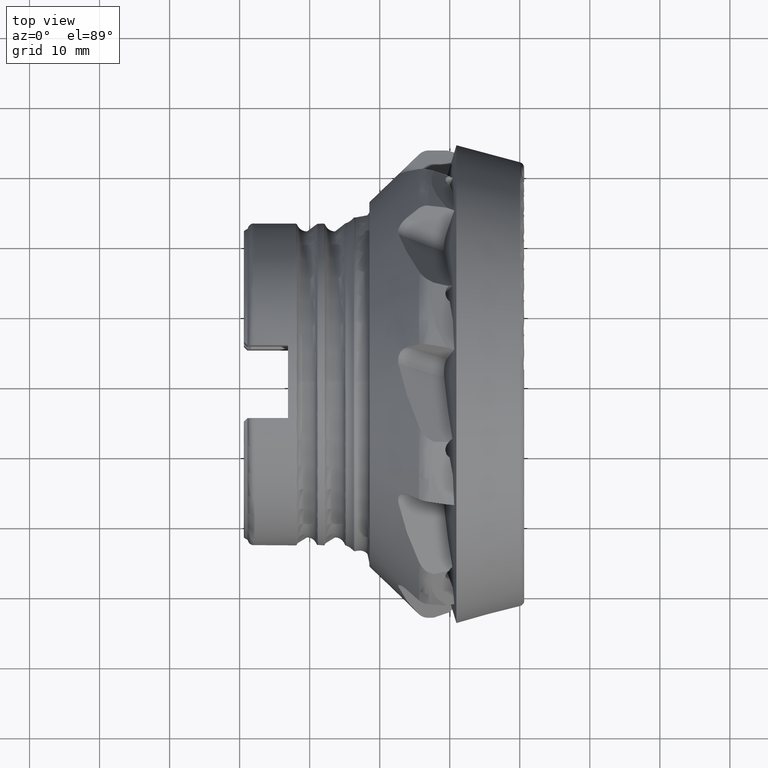
[diagram: clean part render]
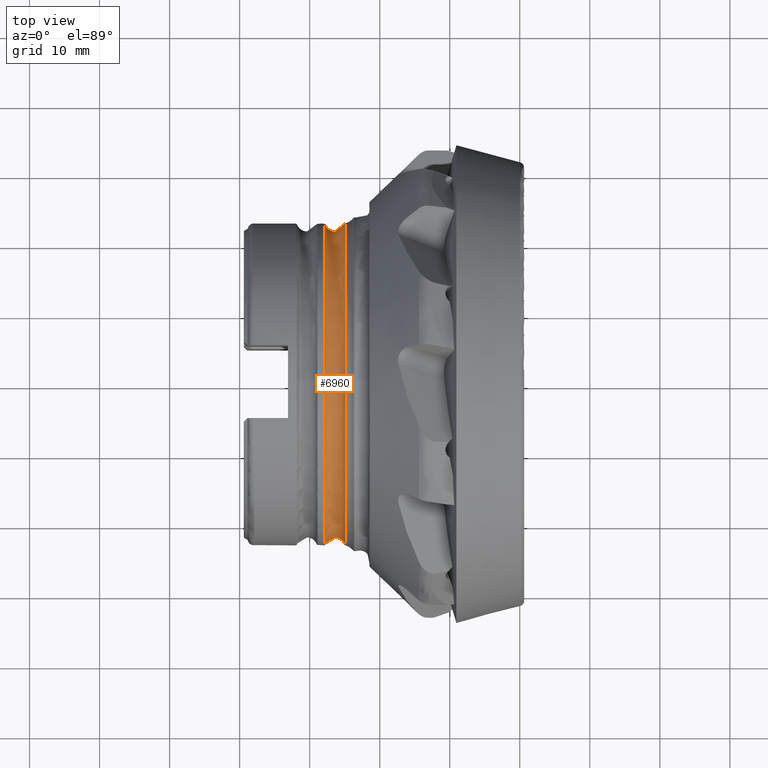
[diagram: same view with one face highlighted and labeled with its STEP entity id]
A machine part, top view. The second image highlights one B-rep face of the part: STEP entity #6960.
In plain terms, the highlighted toroidal blend (fillet) surface has major radius 23.4 mm and minor (blend) radius 1.5 mm.
Its self-contained STEP definition (entity closure, byte-faithful):
#209 = ORIENTED_EDGE ( 'NONE', *, *, #4932, .T. ) ;
#270 = CARTESIAN_POINT ( 'NONE',  ( -24.96919220290268300, 0.0000000000000000000, 22.94967895034341500 ) ) ;
#1195 = FACE_OUTER_BOUND ( 'NONE', #5828, .T. ) ;
#1976 = CARTESIAN_POINT ( 'NONE',  ( -27.80346826946406900, 0.0000000000000000000, 0.0000000000000000000 ) ) ;
#2027 = VERTEX_POINT ( 'NONE', #5624 ) ;
#2421 = EDGE_LOOP ( 'NONE', ( #3235 ) ) ;
#2504 = DIRECTION ( 'NONE',  ( -1.000000000000000000, -0.0000000000000000000, -0.0000000000000000000 ) ) ;
#2516 = DIRECTION ( 'NONE',  ( 0.0000000000000000000, 0.0000000000000000000, -1.000000000000000000 ) ) ;
#2864 = CARTESIAN_POINT ( 'NONE',  ( -26.39999999999999500, 0.0000000000000000000, 0.0000000000000000000 ) ) ;
#3235 = ORIENTED_EDGE ( 'NONE', *, *, #6214, .T. ) ;
#3717 = FACE_OUTER_BOUND ( 'NONE', #2421, .T. ) ;
#3855 = AXIS2_PLACEMENT_3D ( 'NONE', #2864, #4474, #6617 ) ;
#3975 = CIRCLE ( 'NONE', #3996, 22.94967895034341500 ) ;
#3996 = AXIS2_PLACEMENT_3D ( 'NONE', #5707, #2504, #6254 ) ;
#4474 = DIRECTION ( 'NONE',  ( -1.000000000000000000, -0.0000000000000000000, -0.0000000000000000000 ) ) ;
#4932 = EDGE_CURVE ( 'NONE', #5046, #5046, #3975, .T. ) ;
#5046 = VERTEX_POINT ( 'NONE', #270 ) ;
#5133 = TOROIDAL_SURFACE ( 'NONE', #3855, 23.39999999999999500, 1.500000000000000900 ) ;
#5624 = CARTESIAN_POINT ( 'NONE',  ( -27.80346826946406900, 0.0000000000000000000, -22.87058823529391200 ) ) ;
#5639 = CIRCLE ( 'NONE', #6958, 22.87058823529391200 ) ;
#5707 = CARTESIAN_POINT ( 'NONE',  ( -24.96919220290268300, 0.0000000000000000000, 0.0000000000000000000 ) ) ;
#5717 = DIRECTION ( 'NONE',  ( 1.000000000000000000, 0.0000000000000000000, 0.0000000000000000000 ) ) ;
#5828 = EDGE_LOOP ( 'NONE', ( #209 ) ) ;
#6214 = EDGE_CURVE ( 'NONE', #2027, #2027, #5639, .T. ) ;
#6254 = DIRECTION ( 'NONE',  ( 0.0000000000000000000, 0.0000000000000000000, 1.000000000000000000 ) ) ;
#6617 = DIRECTION ( 'NONE',  ( 0.0000000000000000000, 0.0000000000000000000, 1.000000000000000000 ) ) ;
#6958 = AXIS2_PLACEMENT_3D ( 'NONE', #1976, #5717, #2516 ) ;
#6960 = ADVANCED_FACE ( 'NONE', ( #1195, #3717 ), #5133, .F. ) ;